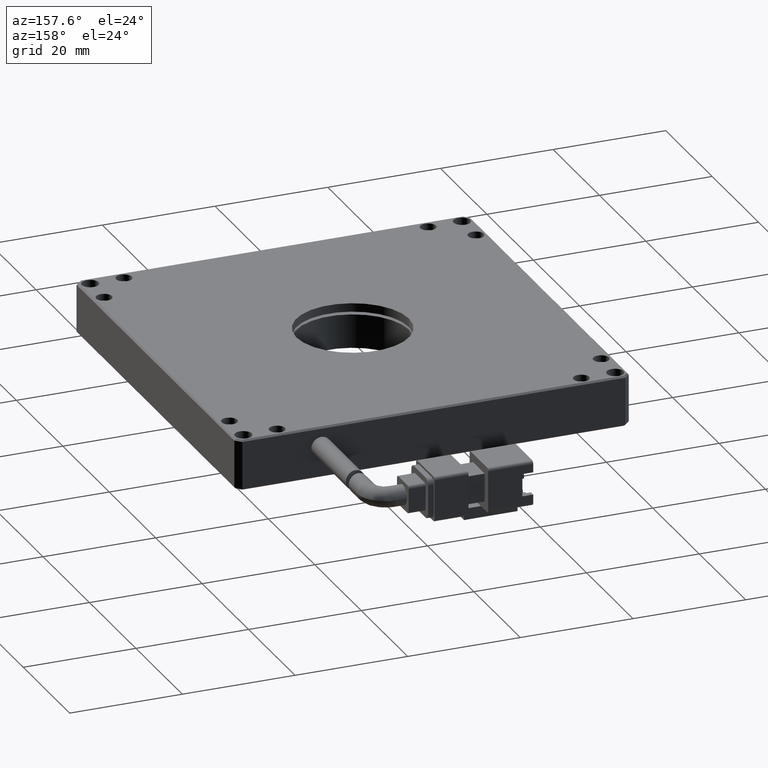
[diagram: clean part render]
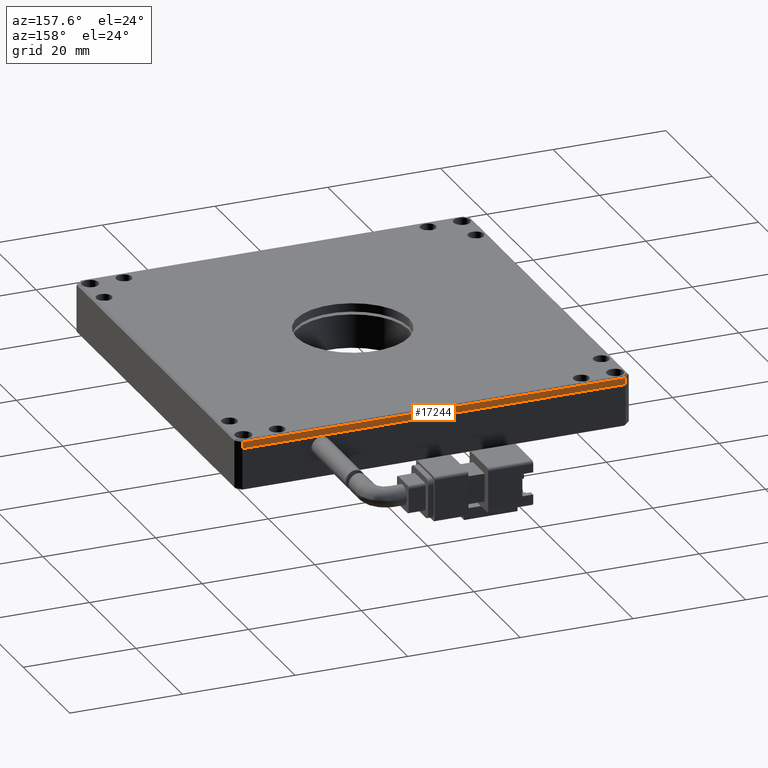
[diagram: same view with one face highlighted and labeled with its STEP entity id]
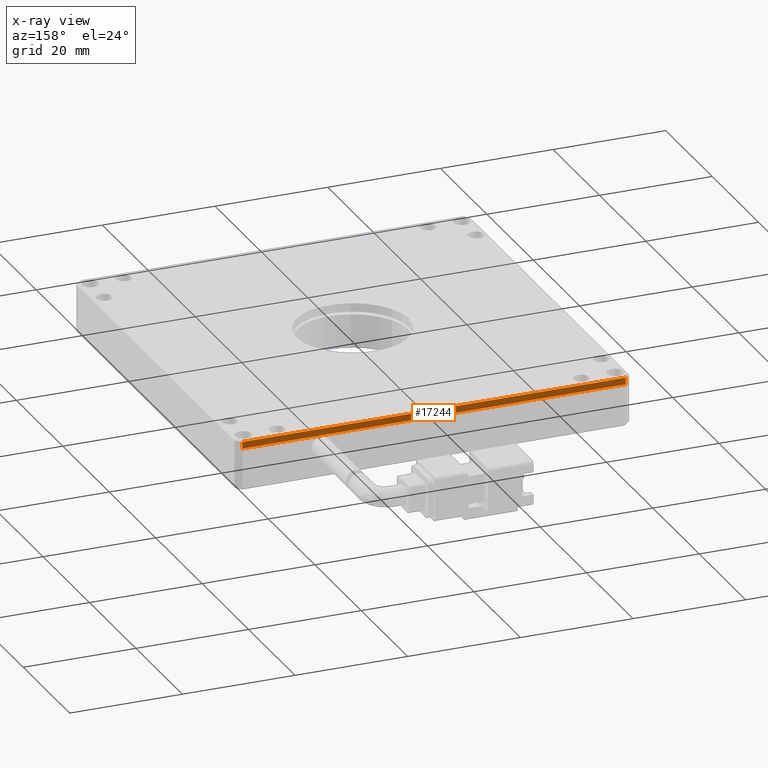
[diagram: x-ray of the same camera — body ghosted, the highlighted face saturated]
A machine part, auxiliary view. The second image highlights one B-rep face of the part: STEP entity #17244.
The next image is the same camera in x-ray: the body ghosted, the highlighted face saturated — about 0% of this face is hidden behind the body in this view.
In plain terms, the highlighted planar face has unit normal (0, -1, 0).
Its self-contained STEP definition (entity closure, byte-faithful):
#1190 = DIRECTION ( 'NONE',  ( 0.0000000000000000000, -0.0000000000000000000, -1.000000000000000000 ) ) ;
#2933 = EDGE_LOOP ( 'NONE', ( #5777, #14079, #5579, #14341 ) ) ;
#3239 = DIRECTION ( 'NONE',  ( 1.000000000000000000, -0.0000000000000000000, 0.0000000000000000000 ) ) ;
#3552 = VERTEX_POINT ( 'NONE', #13402 ) ;
#3805 = FACE_OUTER_BOUND ( 'NONE', #2933, .T. ) ;
#4324 = EDGE_CURVE ( 'NONE', #7932, #3552, #13867, .T. ) ;
#4481 = DIRECTION ( 'NONE',  ( 0.0000000000000000000, -0.0000000000000000000, -1.000000000000000000 ) ) ;
#4509 = VERTEX_POINT ( 'NONE', #20112 ) ;
#5487 = CARTESIAN_POINT ( 'NONE',  ( 21.53369289340098500, 72.53591370558378100, 5.700000000000008200 ) ) ;
#5579 = ORIENTED_EDGE ( 'NONE', *, *, #14463, .F. ) ;
#5777 = ORIENTED_EDGE ( 'NONE', *, *, #12846, .F. ) ;
#5845 = CARTESIAN_POINT ( 'NONE',  ( -47.46630710659900400, 72.53591370558378100, 5.700000000000005500 ) ) ;
#7714 = CARTESIAN_POINT ( 'NONE',  ( -46.46630710659899000, 72.53591370558378100, 6.000000000000000000 ) ) ;
#7871 = DIRECTION ( 'NONE',  ( 0.0000000000000000000, -1.000000000000000000, 0.0000000000000000000 ) ) ;
#7932 = VERTEX_POINT ( 'NONE', #5487 ) ;
#8206 = CARTESIAN_POINT ( 'NONE',  ( -46.46630710659899000, 72.53591370558378100, 4.500000000000000000 ) ) ;
#9103 = LINE ( 'NONE', #7714, #10900 ) ;
#9152 = DIRECTION ( 'NONE',  ( -1.000000000000000000, -0.0000000000000000000, -0.0000000000000000000 ) ) ;
#9439 = LINE ( 'NONE', #5845, #18967 ) ;
#10900 = VECTOR ( 'NONE', #4481, 1000.000000000000000 ) ;
#11155 = DIRECTION ( 'NONE',  ( -0.0000000000000000000, -0.0000000000000000000, -1.000000000000000000 ) ) ;
#12269 = AXIS2_PLACEMENT_3D ( 'NONE', #12514, #7871, #1190 ) ;
#12514 = CARTESIAN_POINT ( 'NONE',  ( -47.46630710659900400, 72.53591370558378100, 6.000000000000000000 ) ) ;
#12822 = VECTOR ( 'NONE', #11155, 1000.000000000000000 ) ;
#12846 = EDGE_CURVE ( 'NONE', #7932, #4509, #9439, .T. ) ;
#13402 = CARTESIAN_POINT ( 'NONE',  ( 21.53369289340097100, 72.53591370558378100, 4.500000000000000900 ) ) ;
#13867 = LINE ( 'NONE', #19394, #12822 ) ;
#13879 = EDGE_CURVE ( 'NONE', #4509, #19233, #9103, .T. ) ;
#14079 = ORIENTED_EDGE ( 'NONE', *, *, #4324, .T. ) ;
#14256 = PLANE ( 'NONE',  #12269 ) ;
#14341 = ORIENTED_EDGE ( 'NONE', *, *, #13879, .F. ) ;
#14463 = EDGE_CURVE ( 'NONE', #19233, #3552, #18879, .T. ) ;
#14860 = CARTESIAN_POINT ( 'NONE',  ( -47.46630710659900400, 72.53591370558378100, 4.500000000000000900 ) ) ;
#17072 = VECTOR ( 'NONE', #3239, 1000.000000000000000 ) ;
#17244 = ADVANCED_FACE ( 'NONE', ( #3805 ), #14256, .F. ) ;
#18879 = LINE ( 'NONE', #14860, #17072 ) ;
#18967 = VECTOR ( 'NONE', #9152, 1000.000000000000000 ) ;
#19233 = VERTEX_POINT ( 'NONE', #8206 ) ;
#19394 = CARTESIAN_POINT ( 'NONE',  ( 21.53369289340097100, 72.53591370558378100, 6.000000000000000000 ) ) ;
#20112 = CARTESIAN_POINT ( 'NONE',  ( -46.46630710659899000, 72.53591370558378100, 5.700000000000005500 ) ) ;